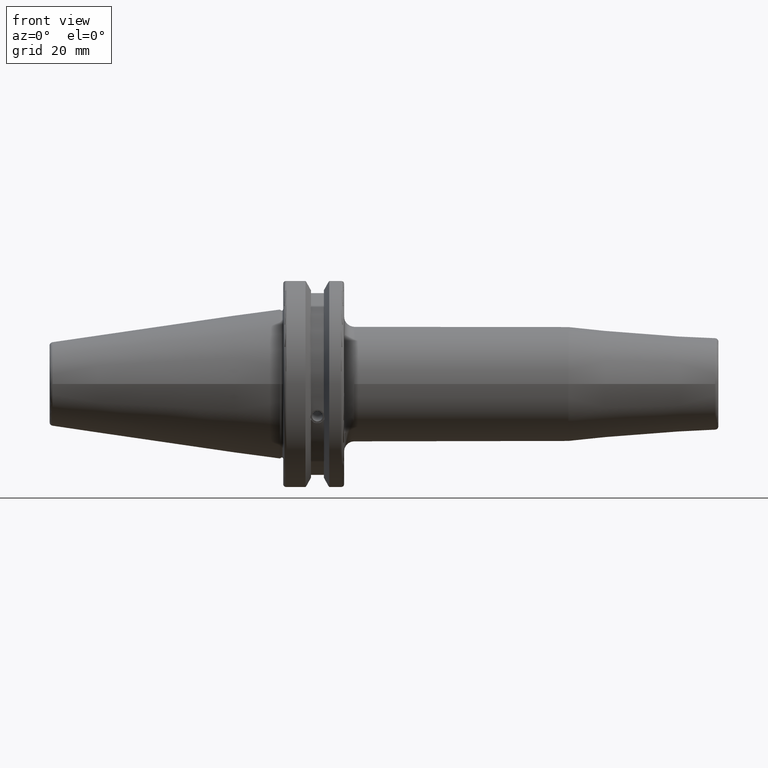
[diagram: clean part render]
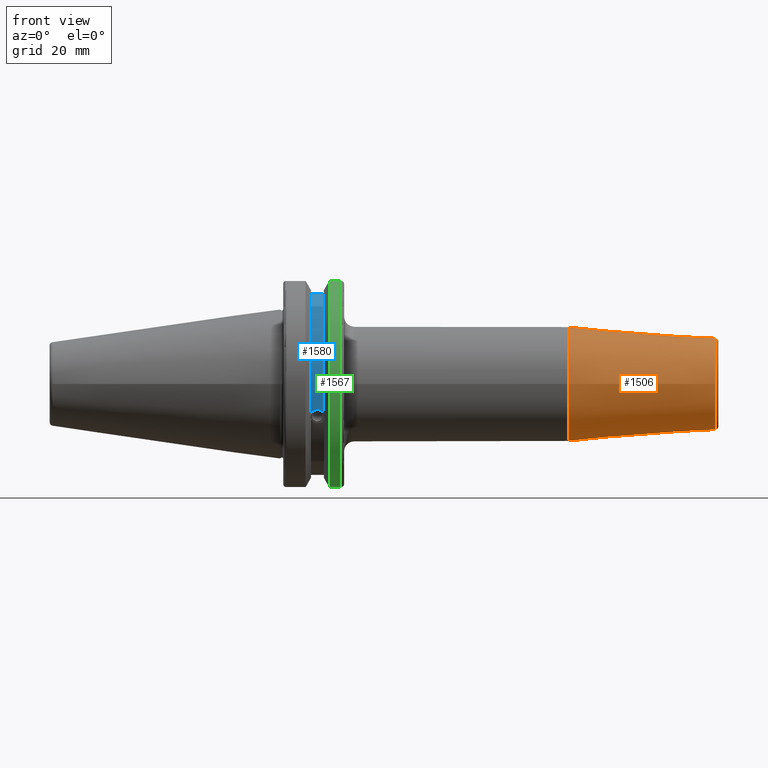
[diagram: same view with three faces highlighted in distinct colors, each labeled with its STEP entity id]
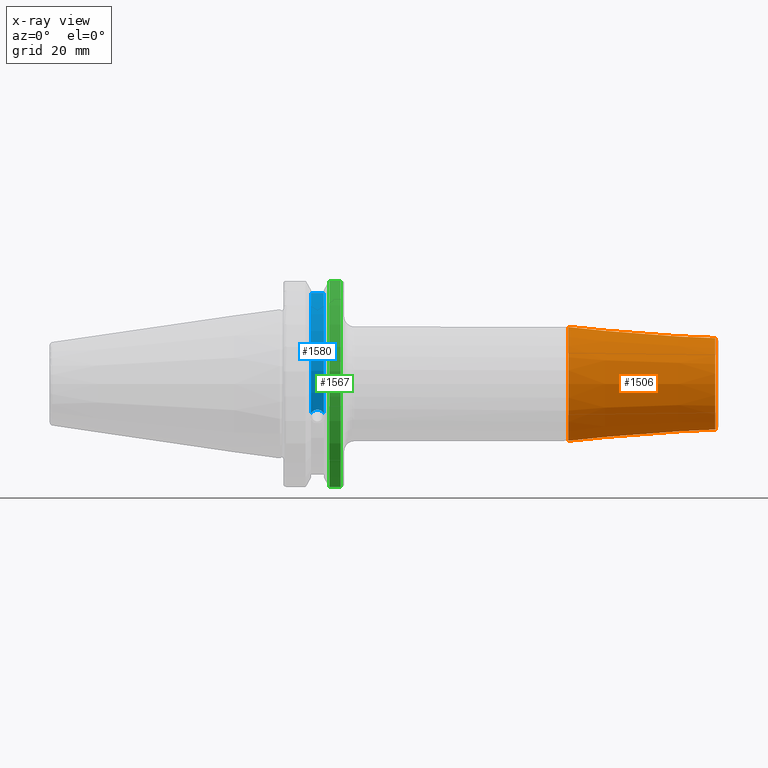
[diagram: x-ray of the same camera — body ghosted, the three highlighted faces saturated]
A machine part, front view with three faces highlighted in distinct colors.
The next image is the same camera in x-ray (body ghosted, the three faces saturated) — at least one of them is partly hidden behind the body in this view.
Their STEP definitions:

[orange] entity #1506 — the highlighted conical surface has half-angle 4.5 deg.
#181=FACE_OUTER_BOUND('',#272,.T.);
#272=EDGE_LOOP('',(#1041,#1042,#1043,#1044,#1045));
#373=LINE('',#2281,#466);
#466=VECTOR('',#1830,15.25);
#559=CIRCLE('',#1622,13.5725268420749);
#560=CIRCLE('',#1623,13.5725268420749);
#562=CIRCLE('',#1627,17.);
#635=VERTEX_POINT('',#2271);
#636=VERTEX_POINT('',#2273);
#638=VERTEX_POINT('',#2280);
#794=EDGE_CURVE('',#635,#636,#559,.T.);
#795=EDGE_CURVE('',#636,#635,#560,.T.);
#797=EDGE_CURVE('',#636,#638,#373,.T.);
#798=EDGE_CURVE('',#638,#638,#562,.T.);
#1041=ORIENTED_EDGE('',*,*,#795,.F.);
#1042=ORIENTED_EDGE('',*,*,#797,.T.);
#1043=ORIENTED_EDGE('',*,*,#798,.T.);
#1044=ORIENTED_EDGE('',*,*,#797,.F.);
#1045=ORIENTED_EDGE('',*,*,#794,.F.);
#1488=CONICAL_SURFACE('',#1626,15.25,0.0785398163397448);
#1506=ADVANCED_FACE('',(#181),#1488,.T.);
#1622=AXIS2_PLACEMENT_3D('',#2274,#1820,#1821);
#1623=AXIS2_PLACEMENT_3D('',#2275,#1822,#1823);
#1626=AXIS2_PLACEMENT_3D('',#2279,#1828,#1829);
#1627=AXIS2_PLACEMENT_3D('',#2282,#1831,#1832);
#1820=DIRECTION('center_axis',(1.,0.,0.));
#1821=DIRECTION('ref_axis',(0.,-1.,3.06161699786838E-17));
#1822=DIRECTION('center_axis',(1.,0.,0.));
#1823=DIRECTION('ref_axis',(0.,-1.,3.06161699786838E-17));
#1828=DIRECTION('center_axis',(-1.,0.,0.));
#1829=DIRECTION('ref_axis',(0.,1.,0.));
#1830=DIRECTION('',(-0.996917333733128,-0.0784590957278449,-9.60846804471011E-18));
#1831=DIRECTION('center_axis',(1.,0.,0.));
#1832=DIRECTION('ref_axis',(0.,0.,-1.));
#2271=CARTESIAN_POINT('',(129.078459095728,-1.66215515534886E-15,13.5725268420749));
#2273=CARTESIAN_POINT('',(129.078459095728,-13.5725268420749,-1.66215515534886E-15));
#2274=CARTESIAN_POINT('Origin',(129.078459095728,0.,-2.07769394418607E-15));
#2275=CARTESIAN_POINT('Origin',(129.078459095728,0.,-2.07769394418607E-15));
#2279=CARTESIAN_POINT('Origin',(107.764141711694,0.,0.));
#2280=CARTESIAN_POINT('',(85.5282834233885,-17.,-2.0818995585505E-15));
#2281=CARTESIAN_POINT('',(107.764141711694,-15.25,-1.86758636869971E-15));
#2282=CARTESIAN_POINT('Origin',(85.5282834233885,0.,0.));

[blue] entity #1580 — the highlighted cylindrical surface (partial cylindrical patch) has radius 28.15 mm, axis along (1, 0, 0).
#37=B_SPLINE_CURVE_WITH_KNOTS('',3,(#2479,#2480,#2481,#2482,#2483,#2484,
#2485,#2486,#2487,#2488,#2489,#2490,#2491,#2492),.UNSPECIFIED.,.F.,.F.,
(4,2,2,2,2,2,4),(0.401639126382403,0.474814416953736,0.553950208498303,
0.63308600004287,0.712221791587437,0.791357583132004,0.864532873703337),
 .UNSPECIFIED.);
#173=CYLINDRICAL_SURFACE('',#1781,28.15);
#255=FACE_OUTER_BOUND('',#359,.T.);
#359=EDGE_LOOP('',(#1455,#1456,#1457,#1458));
#436=LINE('',#2900,#529);
#529=VECTOR('',#2107,10.);
#623=CIRCLE('',#1778,28.15);
#625=CIRCLE('',#1782,28.15);
#677=VERTEX_POINT('',#2476);
#678=VERTEX_POINT('',#2478);
#760=VERTEX_POINT('',#2897);
#761=VERTEX_POINT('',#2899);
#849=EDGE_CURVE('',#678,#677,#37,.T.);
#960=EDGE_CURVE('',#761,#760,#436,.T.);
#1010=EDGE_CURVE('',#760,#678,#623,.T.);
#1012=EDGE_CURVE('',#761,#677,#625,.T.);
#1455=ORIENTED_EDGE('',*,*,#849,.T.);
#1456=ORIENTED_EDGE('',*,*,#1012,.F.);
#1457=ORIENTED_EDGE('',*,*,#960,.T.);
#1458=ORIENTED_EDGE('',*,*,#1010,.T.);
#1580=ADVANCED_FACE('',(#255),#173,.T.);
#1778=AXIS2_PLACEMENT_3D('',#3049,#2218,#2219);
#1781=AXIS2_PLACEMENT_3D('',#3052,#2224,#2225);
#1782=AXIS2_PLACEMENT_3D('',#3053,#2226,#2227);
#2107=DIRECTION('',(-1.,0.,0.));
#2218=DIRECTION('center_axis',(1.,0.,0.));
#2219=DIRECTION('ref_axis',(0.,0.,-1.));
#2224=DIRECTION('center_axis',(1.,0.,0.));
#2225=DIRECTION('ref_axis',(0.,-0.887654187951484,0.46051063246378));
#2226=DIRECTION('center_axis',(1.,0.,0.));
#2227=DIRECTION('ref_axis',(0.,0.,-1.));
#2476=CARTESIAN_POINT('',(13.0491,-26.734714844398,-8.81348524641212));
#2478=CARTESIAN_POINT('',(9.2191,-26.734714844398,-8.81348524641212));
#2479=CARTESIAN_POINT('Ctrl Pts',(9.2191,-26.734714844398,-8.81348524641212));
#2480=CARTESIAN_POINT('Ctrl Pts',(9.32533057097183,-26.8086519721597,-8.58920529678291));
#2481=CARTESIAN_POINT('Ctrl Pts',(9.4768201377051,-26.8729987454904,-8.38416529997369));
#2482=CARTESIAN_POINT('Ctrl Pts',(9.83557062657411,-26.9778908791383,-8.04056861831091));
#2483=CARTESIAN_POINT('Ctrl Pts',(10.0716450112988,-27.0233016799732,-7.88512567185902));
#2484=CARTESIAN_POINT('Ctrl Pts',(10.5890125426388,-27.0826966800569,-7.6786444840004));
#2485=CARTESIAN_POINT('Ctrl Pts',(10.8703140281848,-27.0968804077294,-7.62768458768512));
#2486=CARTESIAN_POINT('Ctrl Pts',(11.3978859718152,-27.0968804077294,-7.62768458768512));
#2487=CARTESIAN_POINT('Ctrl Pts',(11.6791874573612,-27.0826966800569,-7.6786444840004));
#2488=CARTESIAN_POINT('Ctrl Pts',(12.1965549887012,-27.0233016799732,-7.88512567185902));
#2489=CARTESIAN_POINT('Ctrl Pts',(12.4326293734259,-26.9778908791383,-8.04056861831091));
#2490=CARTESIAN_POINT('Ctrl Pts',(12.7913798622949,-26.8729987454904,-8.38416529997369));
#2491=CARTESIAN_POINT('Ctrl Pts',(12.9428694290282,-26.8086519721597,-8.58920529678291));
#2492=CARTESIAN_POINT('Ctrl Pts',(13.0491,-26.734714844398,-8.81348524641212));
#2897=CARTESIAN_POINT('',(9.2191,-8.19,26.932255754021));
#2899=CARTESIAN_POINT('',(13.0491,-8.19,26.932255754021));
#2900=CARTESIAN_POINT('',(11.1341,-8.19,26.932255754021));
#3049=CARTESIAN_POINT('Origin',(9.2191,0.,0.));
#3052=CARTESIAN_POINT('Origin',(11.1341,0.,0.));
#3053=CARTESIAN_POINT('Origin',(13.0491,0.,0.));

[green] entity #1567 — the highlighted cylindrical surface (partial cylindrical patch) has radius 31.75 mm, axis along (1, 0, 0).
#168=CYLINDRICAL_SURFACE('',#1760,31.75);
#242=FACE_OUTER_BOUND('',#346,.T.);
#346=EDGE_LOOP('',(#1396,#1397,#1398,#1399));
#453=LINE('',#3018,#546);
#454=LINE('',#3020,#547);
#546=VECTOR('',#2176,10.);
#547=VECTOR('',#2179,10.);
#584=CIRCLE('',#1678,31.75);
#607=CIRCLE('',#1732,31.75);
#691=VERTEX_POINT('',#2564);
#692=VERTEX_POINT('',#2568);
#755=VERTEX_POINT('',#2863);
#756=VERTEX_POINT('',#2872);
#867=EDGE_CURVE('',#692,#691,#584,.T.);
#953=EDGE_CURVE('',#755,#756,#607,.T.);
#997=EDGE_CURVE('',#756,#691,#453,.T.);
#998=EDGE_CURVE('',#692,#755,#454,.T.);
#1396=ORIENTED_EDGE('',*,*,#953,.F.);
#1397=ORIENTED_EDGE('',*,*,#998,.F.);
#1398=ORIENTED_EDGE('',*,*,#867,.T.);
#1399=ORIENTED_EDGE('',*,*,#997,.F.);
#1567=ADVANCED_FACE('',(#242),#168,.T.);
#1678=AXIS2_PLACEMENT_3D('',#2569,#1959,#1960);
#1732=AXIS2_PLACEMENT_3D('',#2873,#2100,#2101);
#1760=AXIS2_PLACEMENT_3D('',#3019,#2177,#2178);
#1959=DIRECTION('center_axis',(1.,0.,0.));
#1960=DIRECTION('ref_axis',(0.,0.,-1.));
#2100=DIRECTION('center_axis',(1.,0.,0.));
#2101=DIRECTION('ref_axis',(0.,-1.,1.60812264967664E-16));
#2176=DIRECTION('',(-1.,0.,0.));
#2177=DIRECTION('center_axis',(1.,0.,0.));
#2178=DIRECTION('ref_axis',(0.,-1.,1.22464679914735E-16));
#2179=DIRECTION('',(1.,0.,0.));
#2564=CARTESIAN_POINT('',(14.6602667690756,-8.67204822802686,-30.5427254764662));
#2568=CARTESIAN_POINT('',(14.6602667690756,-8.67204822802685,30.5427254764662));
#2569=CARTESIAN_POINT('Origin',(14.6602667690756,0.,0.));
#2863=CARTESIAN_POINT('',(18.05,-8.67204822802685,30.5427254764662));
#2872=CARTESIAN_POINT('',(18.05,-8.67204822802686,-30.5427254764662));
#2873=CARTESIAN_POINT('Origin',(18.05,0.,0.));
#3018=CARTESIAN_POINT('',(16.8551333845378,-8.67204822802686,-30.5427254764662));
#3019=CARTESIAN_POINT('Origin',(16.8551333845378,0.,0.));
#3020=CARTESIAN_POINT('',(16.8551333845378,-8.67204822802685,30.5427254764662));